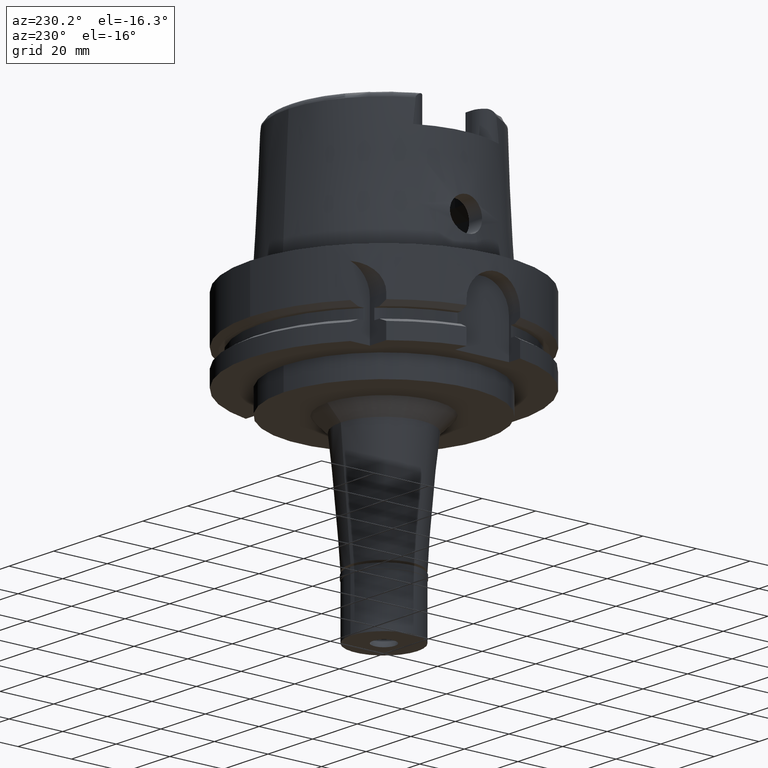
[diagram: clean part render]
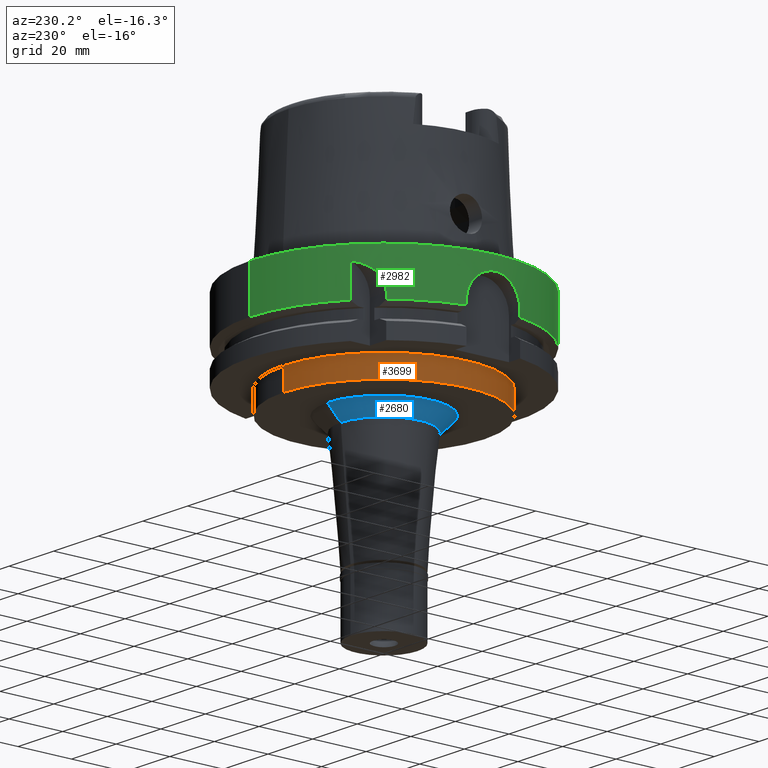
[diagram: same view with three faces highlighted in distinct colors, each labeled with its STEP entity id]
A machine part, auxiliary view with three faces highlighted in distinct colors.
Their STEP definitions:

[orange] entity #3699 — the highlighted cylindrical surface (partial cylindrical patch) has radius 37.5 mm, axis along (0, 0, 1).
#30 = ORIENTED_EDGE ( 'NONE', *, *, #2833, .F. ) ;
#270 = CARTESIAN_POINT ( 'NONE',  ( 0.0000000000000000000, 37.50000000000000000, -29.00000000000000000 ) ) ;
#278 = DIRECTION ( 'NONE',  ( 0.0000000000000000000, 0.0000000000000000000, 1.000000000000000000 ) ) ;
#393 = DIRECTION ( 'NONE',  ( 0.0000000000000000000, 0.0000000000000000000, -1.000000000000000000 ) ) ;
#563 = VERTEX_POINT ( 'NONE', #4915 ) ;
#754 = DIRECTION ( 'NONE',  ( 0.0000000000000000000, 0.0000000000000000000, 1.000000000000000000 ) ) ;
#762 = VECTOR ( 'NONE', #3190, 1000.000000000000000 ) ;
#862 = AXIS2_PLACEMENT_3D ( 'NONE', #1278, #278, #3401 ) ;
#1223 = EDGE_LOOP ( 'NONE', ( #4457, #30, #2202, #3383 ) ) ;
#1278 = CARTESIAN_POINT ( 'NONE',  ( 0.0000000000000000000, 0.0000000000000000000, -37.00000000000000000 ) ) ;
#1288 = CIRCLE ( 'NONE', #4975, 37.50000000000000000 ) ;
#1596 = CARTESIAN_POINT ( 'NONE',  ( 0.0000000000000000000, 37.50000000000000000, -37.00000000000000000 ) ) ;
#1748 = CARTESIAN_POINT ( 'NONE',  ( 0.0000000000000000000, -37.50000000000000000, -29.00000000000000000 ) ) ;
#2083 = DIRECTION ( 'NONE',  ( 0.0000000000000000000, 1.000000000000000000, 0.0000000000000000000 ) ) ;
#2171 = FACE_OUTER_BOUND ( 'NONE', #1223, .T. ) ;
#2197 = EDGE_CURVE ( 'NONE', #4743, #563, #1288, .T. ) ;
#2202 = ORIENTED_EDGE ( 'NONE', *, *, #2197, .T. ) ;
#2265 = DIRECTION ( 'NONE',  ( 0.0000000000000000000, 0.0000000000000000000, -1.000000000000000000 ) ) ;
#2282 = VECTOR ( 'NONE', #393, 1000.000000000000000 ) ;
#2283 = CIRCLE ( 'NONE', #862, 37.50000000000000000 ) ;
#2588 = CARTESIAN_POINT ( 'NONE',  ( 0.0000000000000000000, 0.0000000000000000000, -106.2399999999999949 ) ) ;
#2833 = EDGE_CURVE ( 'NONE', #4743, #4057, #3430, .T. ) ;
#3190 = DIRECTION ( 'NONE',  ( 0.0000000000000000000, 0.0000000000000000000, -1.000000000000000000 ) ) ;
#3383 = ORIENTED_EDGE ( 'NONE', *, *, #4031, .T. ) ;
#3401 = DIRECTION ( 'NONE',  ( 0.0000000000000000000, 1.000000000000000000, 0.0000000000000000000 ) ) ;
#3430 = LINE ( 'NONE', #1748, #2282 ) ;
#3659 = CARTESIAN_POINT ( 'NONE',  ( 0.0000000000000000000, -37.50000000000000000, -29.00000000000000000 ) ) ;
#3699 = ADVANCED_FACE ( 'NONE', ( #2171 ), #4216, .T. ) ;
#3971 = DIRECTION ( 'NONE',  ( 0.0000000000000000000, -1.000000000000000000, 0.0000000000000000000 ) ) ;
#4031 = EDGE_CURVE ( 'NONE', #563, #4277, #4515, .T. ) ;
#4057 = VERTEX_POINT ( 'NONE', #4949 ) ;
#4216 = CYLINDRICAL_SURFACE ( 'NONE', #5186, 37.50000000000000000 ) ;
#4277 = VERTEX_POINT ( 'NONE', #1596 ) ;
#4404 = CARTESIAN_POINT ( 'NONE',  ( 0.0000000000000000000, 0.0000000000000000000, -29.00000000000000000 ) ) ;
#4457 = ORIENTED_EDGE ( 'NONE', *, *, #5093, .T. ) ;
#4515 = LINE ( 'NONE', #270, #762 ) ;
#4743 = VERTEX_POINT ( 'NONE', #3659 ) ;
#4915 = CARTESIAN_POINT ( 'NONE',  ( 0.0000000000000000000, 37.50000000000000000, -29.00000000000000000 ) ) ;
#4949 = CARTESIAN_POINT ( 'NONE',  ( 0.0000000000000000000, -37.50000000000000000, -37.00000000000000000 ) ) ;
#4975 = AXIS2_PLACEMENT_3D ( 'NONE', #4404, #2265, #3971 ) ;
#5093 = EDGE_CURVE ( 'NONE', #4277, #4057, #2283, .T. ) ;
#5186 = AXIS2_PLACEMENT_3D ( 'NONE', #2588, #754, #2083 ) ;

[blue] entity #2680 — the highlighted conical surface has half-angle 45 deg.
#247 = DIRECTION ( 'NONE',  ( 0.0000000000000000000, 0.7071067811862974395, -0.7071067811867974839 ) ) ;
#623 = CARTESIAN_POINT ( 'NONE',  ( 0.0000000000000000000, 21.14827726903000027, -37.00000000000000000 ) ) ;
#844 = VECTOR ( 'NONE', #4921, 1000.000000000000114 ) ;
#945 = CIRCLE ( 'NONE', #4989, 16.14827726903000027 ) ;
#1067 = ORIENTED_EDGE ( 'NONE', *, *, #3150, .T. ) ;
#1376 = CONICAL_SURFACE ( 'NONE', #2716, 18.64827726902999672, 0.7853981633972997312 ) ;
#1567 = EDGE_CURVE ( 'NONE', #3156, #1666, #3571, .T. ) ;
#1666 = VERTEX_POINT ( 'NONE', #4006 ) ;
#1712 = CARTESIAN_POINT ( 'NONE',  ( 0.0000000000000000000, 0.0000000000000000000, -42.00000000000000000 ) ) ;
#2046 = CARTESIAN_POINT ( 'NONE',  ( 0.0000000000000000000, -16.14827726903000027, -42.00000000000000000 ) ) ;
#2269 = CARTESIAN_POINT ( 'NONE',  ( 0.0000000000000000000, 0.0000000000000000000, -37.00000000000000000 ) ) ;
#2278 = VECTOR ( 'NONE', #247, 1000.000000000000114 ) ;
#2489 = DIRECTION ( 'NONE',  ( 0.0000000000000000000, -1.000000000000000000, 0.0000000000000000000 ) ) ;
#2674 = EDGE_CURVE ( 'NONE', #3156, #5260, #3194, .T. ) ;
#2680 = ADVANCED_FACE ( 'NONE', ( #4953 ), #1376, .T. ) ;
#2716 = AXIS2_PLACEMENT_3D ( 'NONE', #3307, #3702, #3280 ) ;
#2869 = EDGE_LOOP ( 'NONE', ( #5520, #3997, #4962, #1067 ) ) ;
#3150 = EDGE_CURVE ( 'NONE', #1666, #5400, #3695, .T. ) ;
#3156 = VERTEX_POINT ( 'NONE', #5435 ) ;
#3194 = LINE ( 'NONE', #5043, #2278 ) ;
#3280 = DIRECTION ( 'NONE',  ( 0.0000000000000000000, 1.000000000000000000, 0.0000000000000000000 ) ) ;
#3307 = CARTESIAN_POINT ( 'NONE',  ( 0.0000000000000000000, 0.0000000000000000000, -39.50000000000000000 ) ) ;
#3518 = DIRECTION ( 'NONE',  ( 0.0000000000000000000, 0.0000000000000000000, -1.000000000000000000 ) ) ;
#3571 = CIRCLE ( 'NONE', #4292, 21.14827726903000027 ) ;
#3695 = LINE ( 'NONE', #623, #844 ) ;
#3702 = DIRECTION ( 'NONE',  ( 0.0000000000000000000, 0.0000000000000000000, 1.000000000000000000 ) ) ;
#3997 = ORIENTED_EDGE ( 'NONE', *, *, #2674, .F. ) ;
#4006 = CARTESIAN_POINT ( 'NONE',  ( 0.0000000000000000000, 21.14827726903000027, -37.00000000000000000 ) ) ;
#4292 = AXIS2_PLACEMENT_3D ( 'NONE', #2269, #3518, #4386 ) ;
#4386 = DIRECTION ( 'NONE',  ( 0.0000000000000000000, -1.000000000000000000, 0.0000000000000000000 ) ) ;
#4756 = CARTESIAN_POINT ( 'NONE',  ( 0.0000000000000000000, 16.14827726903000027, -42.00000000000000000 ) ) ;
#4921 = DIRECTION ( 'NONE',  ( 0.0000000000000000000, -0.7071067811862974395, -0.7071067811867974839 ) ) ;
#4953 = FACE_OUTER_BOUND ( 'NONE', #2869, .T. ) ;
#4962 = ORIENTED_EDGE ( 'NONE', *, *, #1567, .T. ) ;
#4989 = AXIS2_PLACEMENT_3D ( 'NONE', #1712, #5146, #2489 ) ;
#5043 = CARTESIAN_POINT ( 'NONE',  ( 0.0000000000000000000, -21.14827726903000027, -37.00000000000000000 ) ) ;
#5146 = DIRECTION ( 'NONE',  ( 0.0000000000000000000, 0.0000000000000000000, -1.000000000000000000 ) ) ;
#5260 = VERTEX_POINT ( 'NONE', #2046 ) ;
#5400 = VERTEX_POINT ( 'NONE', #4756 ) ;
#5407 = EDGE_CURVE ( 'NONE', #5260, #5400, #945, .T. ) ;
#5435 = CARTESIAN_POINT ( 'NONE',  ( 0.0000000000000000000, -21.14827726903000027, -37.00000000000000000 ) ) ;
#5520 = ORIENTED_EDGE ( 'NONE', *, *, #5407, .F. ) ;

[green] entity #2982 — the highlighted cylindrical surface (partial cylindrical patch) has radius 50 mm, axis along (0, 0, 1).
#18 = CARTESIAN_POINT ( 'NONE',  ( -49.11376096720496065, -9.373077997959802232, -11.49978432326879307 ) ) ;
#78 = ORIENTED_EDGE ( 'NONE', *, *, #906, .F. ) ;
#83 = DIRECTION ( 'NONE',  ( 0.0000000000000000000, 1.000000000000000000, 0.0000000000000000000 ) ) ;
#150 = CARTESIAN_POINT ( 'NONE',  ( -38.56428243161905556, 31.82452987788887100, -12.10463462632676013 ) ) ;
#185 = CARTESIAN_POINT ( 'NONE',  ( -31.50000000000000000, 38.82975663071000128, -5.000000000003000267 ) ) ;
#196 = CARTESIAN_POINT ( 'NONE',  ( -38.51599276995643351, 31.88290173980269060, -11.89496725464521631 ) ) ;
#232 = CARTESIAN_POINT ( 'NONE',  ( -36.69566105582681814, 33.96628597999922761, -8.038090292617715349 ) ) ;
#243 = CARTESIAN_POINT ( 'NONE',  ( -49.93766221889708845, 2.576833951301615855, -5.315698782541145917 ) ) ;
#258 = CARTESIAN_POINT ( 'NONE',  ( -38.60139172826617227, 31.77950293186433584, -12.28584632256214704 ) ) ;
#265 = EDGE_CURVE ( 'NONE', #2411, #1310, #4636, .T. ) ;
#268 = CARTESIAN_POINT ( 'NONE',  ( -49.36413902295041822, 7.957356413242497872, -8.907672157399399993 ) ) ;
#281 = DIRECTION ( 'NONE',  ( -0.7765951326141738997, 0.6299999999999789102, 0.0000000000000000000 ) ) ;
#292 = CARTESIAN_POINT ( 'NONE',  ( -49.05322580645561459, 9.684917966149791724, -12.42504068156063468 ) ) ;
#327 = CARTESIAN_POINT ( 'NONE',  ( -49.75276534624423164, -4.996883345947557231, -6.312905600454568500 ) ) ;
#416 = CARTESIAN_POINT ( 'NONE',  ( -49.00272811111697990, -9.937255846380001145, -13.70646131497156617 ) ) ;
#482 = CIRCLE ( 'NONE', #3166, 49.99999999999997868 ) ;
#511 = EDGE_CURVE ( 'NONE', #3853, #3652, #570, .T. ) ;
#522 = CARTESIAN_POINT ( 'NONE',  ( -48.98979485565999425, 10.00000000000000000, -15.00000000000000000 ) ) ;
#570 = LINE ( 'NONE', #522, #4647 ) ;
#596 = CARTESIAN_POINT ( 'NONE',  ( -35.65907358007449091, 35.04931653068578612, -6.994436786974699949 ) ) ;
#643 = CARTESIAN_POINT ( 'NONE',  ( -37.35962199737617340, 33.23039561188888058, -9.014139173505677505 ) ) ;
#681 = CARTESIAN_POINT ( 'NONE',  ( -34.12331818634723390, 36.57299707597481131, -5.848488339914277745 ) ) ;
#690 = CARTESIAN_POINT ( 'NONE',  ( -49.56420834563829914, 6.603984266183363872, -7.461920244031404081 ) ) ;
#714 = DIRECTION ( 'NONE',  ( 0.0000000000000000000, 0.0000000000000000000, 1.000000000000000000 ) ) ;
#715 = CARTESIAN_POINT ( 'NONE',  ( -49.00578939422626945, 9.921372684344154536, -13.70666068587119391 ) ) ;
#753 = AXIS2_PLACEMENT_3D ( 'NONE', #2692, #4410, #83 ) ;
#842 = VECTOR ( 'NONE', #2343, 1000.000000000000114 ) ;
#874 = CARTESIAN_POINT ( 'NONE',  ( 0.0000000000000000000, -50.00000000000000000, -1.847411112975999717E-13 ) ) ;
#906 = EDGE_CURVE ( 'NONE', #3082, #4096, #1629, .T. ) ;
#1000 = CARTESIAN_POINT ( 'NONE',  ( -48.98979485565999425, -10.00000000000000000, -16.75240473580999989 ) ) ;
#1016 = CARTESIAN_POINT ( 'NONE',  ( -38.70796201607329579, 31.64969338347680505, -12.89513201674562914 ) ) ;
#1044 = CARTESIAN_POINT ( 'NONE',  ( -38.82975663071001549, 31.50000000000000000, -14.13563907234338402 ) ) ;
#1046 = ORIENTED_EDGE ( 'NONE', *, *, #1865, .T. ) ;
#1052 = CARTESIAN_POINT ( 'NONE',  ( 0.0000000000000000000, 0.0000000000000000000, -16.75240473580999989 ) ) ;
#1055 = CARTESIAN_POINT ( 'NONE',  ( -38.82975663071000128, 31.50000000000000000, -14.63689785921000031 ) ) ;
#1061 = VERTEX_POINT ( 'NONE', #185 ) ;
#1069 = CARTESIAN_POINT ( 'NONE',  ( -38.79930797705083734, 31.53775856775367004, -13.63544870742120452 ) ) ;
#1079 = EDGE_CURVE ( 'NONE', #2411, #2431, #1128, .T. ) ;
#1094 = CARTESIAN_POINT ( 'NONE',  ( -38.47947817357611910, 31.92694257492321341, -11.74595733450168744 ) ) ;
#1103 = CARTESIAN_POINT ( 'NONE',  ( -49.24057546737061131, 8.689273284154912957, -10.00696051082658578 ) ) ;
#1128 = CIRCLE ( 'NONE', #5294, 50.00000000000000000 ) ;
#1159 = CARTESIAN_POINT ( 'NONE',  ( -49.80599996320624712, 4.409853147468654200, -6.018768826933621696 ) ) ;
#1188 = CARTESIAN_POINT ( 'NONE',  ( -49.87775720024416870, -3.507471625422800443, -5.629572553200928198 ) ) ;
#1221 = CARTESIAN_POINT ( 'NONE',  ( -49.99998093301590529, -0.6534670004194579329, -5.000092578857270986 ) ) ;
#1248 = CARTESIAN_POINT ( 'NONE',  ( -48.98979485566345460, -10.00000000000062528, -14.35040085522487097 ) ) ;
#1310 = VERTEX_POINT ( 'NONE', #1696 ) ;
#1347 = DIRECTION ( 'NONE',  ( 3.933032361779000221E-13, -2.534170336197999844E-14, 1.000000000000000000 ) ) ;
#1440 = B_SPLINE_CURVE_WITH_KNOTS ( 'NONE', 3,
 ( #4912, #1044, #1069, #1016, #5427, #258, #150, #196, #2319, #1094, #1495, #2781, #1547, #2810, #3582, #4504, #2758, #4107, #643, #4995, #4455, #4878, #4076, #232, #1979, #3662, #596, #5402, #5321, #4021, #1520, #3231, #4963, #4537, #681, #2398, #2450 ),
 .UNSPECIFIED., .F., .F.,
 ( 4, 2, 2, 1, 1, 2, 2, 2, 2, 1, 1, 1, 2, 2, 2, 2, 1, 1, 1, 1, 2, 2, 4 ),
 ( 0.0000000000000000000, 0.1250000000000055789, 0.1875000000000083822, 0.2187500000000097700, 0.2343750000000104916, 0.2421875000000109912, 0.2500000000000115463, 0.3750000000000219824, 0.4375000000000274780, 0.4687500000000296985, 0.4843750000000308087, 0.4921875000000306977, 0.4960937500000309752, 0.5000000000000313083, 0.6250000000000336398, 0.6875000000000351941, 0.7187500000000356382, 0.7343750000000354161, 0.7421875000000349720, 0.7460937500000351941, 0.7480468750000353051, 0.7500000000000354161, 1.000000000000000000 ),
 .UNSPECIFIED. ) ;
#1444 = LINE ( 'NONE', #2731, #842 ) ;
#1474 = CARTESIAN_POINT ( 'NONE',  ( -49.83155971895288872, 4.111934493504848298, -5.878629102294919306 ) ) ;
#1480 = VERTEX_POINT ( 'NONE', #2194 ) ;
#1495 = CARTESIAN_POINT ( 'NONE',  ( -38.47234325132769328, 31.93553949877599862, -11.71762511075636048 ) ) ;
#1512 = CARTESIAN_POINT ( 'NONE',  ( -38.82975730067999365, 31.49999917413000361, -16.75240773889999701 ) ) ;
#1520 = CARTESIAN_POINT ( 'NONE',  ( -35.17537952936849166, 35.53442230105653721, -6.611165374052017540 ) ) ;
#1529 = CARTESIAN_POINT ( 'NONE',  ( -38.82975730067999365, 31.49999917413000361, -16.75240773889999701 ) ) ;
#1547 = CARTESIAN_POINT ( 'NONE',  ( -38.17632630273602246, 32.29025914496128280, -10.70682090802703001 ) ) ;
#1554 = DIRECTION ( 'NONE',  ( 0.0000000000000000000, 1.000000000000000000, 0.0000000000000000000 ) ) ;
#1593 = CARTESIAN_POINT ( 'NONE',  ( -48.99301193280669509, 9.984278233541541425, -14.35123416562304222 ) ) ;
#1621 = CARTESIAN_POINT ( 'NONE',  ( -49.05607978777004519, -9.670066251730652596, -12.43135662633653382 ) ) ;
#1628 = ORIENTED_EDGE ( 'NONE', *, *, #265, .F. ) ;
#1629 = LINE ( 'NONE', #1512, #2134 ) ;
#1650 = CARTESIAN_POINT ( 'NONE',  ( -49.09271140707787850, -9.482343178681549745, -11.80743996049894129 ) ) ;
#1686 = CARTESIAN_POINT ( 'NONE',  ( -50.00001902432047984, 0.6505459170435394789, -4.999907634461547623 ) ) ;
#1696 = CARTESIAN_POINT ( 'NONE',  ( 0.0000000000000000000, -50.00000000000000000, -16.75240473580999989 ) ) ;
#1755 = EDGE_CURVE ( 'NONE', #4665, #2693, #3251, .T. ) ;
#1764 = EDGE_CURVE ( 'NONE', #2937, #1310, #482, .T. ) ;
#1789 = CARTESIAN_POINT ( 'NONE',  ( 0.0000000000000000000, 50.00000000000000000, -16.75240473580999989 ) ) ;
#1865 = EDGE_CURVE ( 'NONE', #2431, #4665, #3815, .T. ) ;
#1964 = CARTESIAN_POINT ( 'NONE',  ( 0.0000000000000000000, 0.0000000000000000000, -16.75240473580999989 ) ) ;
#1965 = CARTESIAN_POINT ( 'NONE',  ( -49.01530533542555190, 9.874410989145081530, -13.38689900033642743 ) ) ;
#1979 = CARTESIAN_POINT ( 'NONE',  ( -36.15164981678162803, 34.54172804584336376, -7.449566750167147866 ) ) ;
#1988 = CARTESIAN_POINT ( 'NONE',  ( -49.43052037931298059, 7.539695759655129947, -8.397875587999802605 ) ) ;
#2038 = ORIENTED_EDGE ( 'NONE', *, *, #1079, .T. ) ;
#2096 = AXIS2_PLACEMENT_3D ( 'NONE', #1964, #714, #1554 ) ;
#2100 = CARTESIAN_POINT ( 'NONE',  ( -49.98727917437998514, -1.297877227065499017, -5.063039826289916334 ) ) ;
#2132 = DIRECTION ( 'NONE',  ( 0.0000000000000000000, -2.969006079282000197E-14, -1.000000000000000000 ) ) ;
#2134 = VECTOR ( 'NONE', #3679, 1000.000000000000227 ) ;
#2194 = CARTESIAN_POINT ( 'NONE',  ( -48.98979485565999425, -10.00000000000000000, -15.00000000000000000 ) ) ;
#2245 = DIRECTION ( 'NONE',  ( -4.014125812537999910E-13, -2.635537149646000036E-14, -1.000000000000000000 ) ) ;
#2261 = EDGE_CURVE ( 'NONE', #1061, #2693, #1444, .T. ) ;
#2266 = ORIENTED_EDGE ( 'NONE', *, *, #2951, .F. ) ;
#2319 = CARTESIAN_POINT ( 'NONE',  ( -38.49422674019226065, 31.90916111476889938, -11.80550684792985550 ) ) ;
#2328 = CARTESIAN_POINT ( 'NONE',  ( -49.98728101595654749, 1.296887710263365801, -5.063028862073664982 ) ) ;
#2341 = ORIENTED_EDGE ( 'NONE', *, *, #1755, .T. ) ;
#2342 = EDGE_CURVE ( 'NONE', #4096, #1061, #1440, .T. ) ;
#2343 = DIRECTION ( 'NONE',  ( -3.028823767049074487E-07, -2.457085509676059455E-07, -0.9999999999999239497 ) ) ;
#2349 = DIRECTION ( 'NONE',  ( 0.0000000000000000000, 0.0000000000000000000, 1.000000000000000000 ) ) ;
#2398 = CARTESIAN_POINT ( 'NONE',  ( -32.91423025105905964, 37.68248565159829155, -5.317891999017795968 ) ) ;
#2405 = CARTESIAN_POINT ( 'NONE',  ( -49.72223154727910810, 5.270286308982509382, -6.495243174837798783 ) ) ;
#2409 = CARTESIAN_POINT ( 'NONE',  ( 0.0000000000000000000, 0.0000000000000000000, -1.847411112975999717E-13 ) ) ;
#2411 = VERTEX_POINT ( 'NONE', #874 ) ;
#2431 = VERTEX_POINT ( 'NONE', #3891 ) ;
#2443 = ORIENTED_EDGE ( 'NONE', *, *, #2342, .F. ) ;
#2450 = CARTESIAN_POINT ( 'NONE',  ( -31.50000000000000000, 38.82975663071000128, -5.000000000003000267 ) ) ;
#2477 = CIRCLE ( 'NONE', #4278, 50.00000000000000711 ) ;
#2581 = CARTESIAN_POINT ( 'NONE',  ( 0.0000000000000000000, -50.00000000000000000, -1.184237892933999964E-13 ) ) ;
#2692 = CARTESIAN_POINT ( 'NONE',  ( 0.0000000000000000000, 0.0000000000000000000, -106.2399999999999949 ) ) ;
#2693 = VERTEX_POINT ( 'NONE', #2827 ) ;
#2731 = CARTESIAN_POINT ( 'NONE',  ( -31.50000000000000000, 38.82975663071000128, -5.000000000003000267 ) ) ;
#2758 = CARTESIAN_POINT ( 'NONE',  ( -37.52314901584829698, 33.04585643121752270, -9.293123408382598427 ) ) ;
#2779 = DIRECTION ( 'NONE',  ( 0.0000000000000000000, 0.0000000000000000000, 1.000000000000000000 ) ) ;
#2781 = CARTESIAN_POINT ( 'NONE',  ( -38.33684535435479290, 32.09868603654006591, -11.18926694058480820 ) ) ;
#2789 = CARTESIAN_POINT ( 'NONE',  ( -49.90100947730315539, 3.202912792423205701, -5.504239524062926492 ) ) ;
#2794 = DIRECTION ( 'NONE',  ( 0.0000000000000000000, -1.000000000000000000, 0.0000000000000000000 ) ) ;
#2806 = CARTESIAN_POINT ( 'NONE',  ( 0.0000000000000000000, 0.0000000000000000000, -16.75240473580999989 ) ) ;
#2810 = CARTESIAN_POINT ( 'NONE',  ( -37.88606029654737029, 32.62931976362159503, -10.01334511173076613 ) ) ;
#2827 = CARTESIAN_POINT ( 'NONE',  ( -31.50000355958999876, 38.82975374304999860, -16.75239179145000179 ) ) ;
#2888 = ORIENTED_EDGE ( 'NONE', *, *, #1764, .T. ) ;
#2937 = VERTEX_POINT ( 'NONE', #4387 ) ;
#2941 = CARTESIAN_POINT ( 'NONE',  ( -49.04044161550470449, -9.748804551245823902, -12.74904141137438174 ) ) ;
#2951 = EDGE_CURVE ( 'NONE', #2937, #1480, #3541, .T. ) ;
#2982 = ADVANCED_FACE ( 'NONE', ( #5328 ), #3062, .T. ) ;
#3062 = CYLINDRICAL_SURFACE ( 'NONE', #753, 50.00000000000000000 ) ;
#3082 = VERTEX_POINT ( 'NONE', #1529 ) ;
#3166 = AXIS2_PLACEMENT_3D ( 'NONE', #1052, #2349, #4051 ) ;
#3226 = EDGE_CURVE ( 'NONE', #3853, #1480, #4797, .T. ) ;
#3231 = CARTESIAN_POINT ( 'NONE',  ( -35.15478724051074266, 35.55478508295975359, -6.596096227843196935 ) ) ;
#3251 = CIRCLE ( 'NONE', #2096, 50.00000000000000000 ) ;
#3302 = CARTESIAN_POINT ( 'NONE',  ( -49.75138070725475359, 4.988442125447416053, -6.326834153193368060 ) ) ;
#3303 = ORIENTED_EDGE ( 'NONE', *, *, #2261, .F. ) ;
#3332 = CARTESIAN_POINT ( 'NONE',  ( -49.43014704699988471, -7.542171443543930209, -8.400588336016667768 ) ) ;
#3333 = ORIENTED_EDGE ( 'NONE', *, *, #4710, .T. ) ;
#3374 = CARTESIAN_POINT ( 'NONE',  ( -48.98979485565999425, 10.00000000000000000, -16.75240473580999989 ) ) ;
#3394 = CARTESIAN_POINT ( 'NONE',  ( 0.0000000000000000000, 50.00000000000000000, -1.184237892933999964E-13 ) ) ;
#3395 = CARTESIAN_POINT ( 'NONE',  ( -49.80800702058242990, -4.419787184495207022, -6.005617640351331943 ) ) ;
#3422 = CARTESIAN_POINT ( 'NONE',  ( -48.98979485565999425, -10.00000000000000000, -15.00000000000000000 ) ) ;
#3450 = CARTESIAN_POINT ( 'NONE',  ( -49.94990229587389052, -2.260619775888224492, -5.253370011513534443 ) ) ;
#3541 = LINE ( 'NONE', #1000, #4063 ) ;
#3543 = CARTESIAN_POINT ( 'NONE',  ( -48.98979485565999425, 10.00000000000000000, -15.00000000000000000 ) ) ;
#3582 = CARTESIAN_POINT ( 'NONE',  ( -37.78105705635771017, 32.75094513408360086, -9.787207227963312661 ) ) ;
#3594 = ORIENTED_EDGE ( 'NONE', *, *, #511, .F. ) ;
#3644 = CARTESIAN_POINT ( 'NONE',  ( -48.98979485566341907, 10.00000000000068390, -14.67491835704066716 ) ) ;
#3652 = VERTEX_POINT ( 'NONE', #3374 ) ;
#3662 = CARTESIAN_POINT ( 'NONE',  ( -35.96050435272421453, 34.74087339845693378, -7.262054034966941352 ) ) ;
#3679 = DIRECTION ( 'NONE',  ( 3.166955095344913800E-07, 3.903884141554897929E-07, 0.9999999999998735456 ) ) ;
#3763 = ORIENTED_EDGE ( 'NONE', *, *, #3226, .T. ) ;
#3815 = LINE ( 'NONE', #3394, #5436 ) ;
#3817 = CARTESIAN_POINT ( 'NONE',  ( -49.36385105112923810, -7.959135214228051147, -8.910023755095679121 ) ) ;
#3852 = CARTESIAN_POINT ( 'NONE',  ( -49.18418642771308669, -8.998901902026652522, -10.58972549864429524 ) ) ;
#3853 = VERTEX_POINT ( 'NONE', #3543 ) ;
#3891 = CARTESIAN_POINT ( 'NONE',  ( 0.0000000000000000000, 50.00000000000000000, -1.184237892933999964E-13 ) ) ;
#4021 = CARTESIAN_POINT ( 'NONE',  ( -35.22322705486222105, 35.48702548803835555, -6.646520134583400186 ) ) ;
#4051 = DIRECTION ( 'NONE',  ( -0.9797958971132723072, -0.1999999999999946265, 0.0000000000000000000 ) ) ;
#4063 = VECTOR ( 'NONE', #1347, 1000.000000000000000 ) ;
#4076 = CARTESIAN_POINT ( 'NONE',  ( -37.01910167768743065, 33.61201606050956059, -8.465169415322973734 ) ) ;
#4086 = CARTESIAN_POINT ( 'NONE',  ( -49.09037218462304963, 9.497375886715952120, -11.80165732377740184 ) ) ;
#4096 = VERTEX_POINT ( 'NONE', #1055 ) ;
#4107 = CARTESIAN_POINT ( 'NONE',  ( -37.41503311812029864, 33.16804154830697371, -9.106476005491746406 ) ) ;
#4149 = DIRECTION ( 'NONE',  ( 0.0000000000000000000, 0.0000000000000000000, -1.000000000000000000 ) ) ;
#4175 = CARTESIAN_POINT ( 'NONE',  ( -49.93451955847145740, -2.577095582779183491, -5.332174567312923052 ) ) ;
#4278 = AXIS2_PLACEMENT_3D ( 'NONE', #2806, #2779, #281 ) ;
#4298 = CARTESIAN_POINT ( 'NONE',  ( -49.62992455194825681, -6.097302004933950137, -7.046391100959627174 ) ) ;
#4387 = CARTESIAN_POINT ( 'NONE',  ( -48.98979485565999425, -10.00000000000000000, -16.75240473580999989 ) ) ;
#4410 = DIRECTION ( 'NONE',  ( 0.0000000000000000000, 0.0000000000000000000, 1.000000000000000000 ) ) ;
#4424 = EDGE_LOOP ( 'NONE', ( #2443, #78, #3333, #3594, #3763, #2266, #2888, #1628, #2038, #1046, #2341, #3303 ) ) ;
#4455 = CARTESIAN_POINT ( 'NONE',  ( -37.31949491298836108, 33.27543996757026434, -8.948588334017905765 ) ) ;
#4504 = CARTESIAN_POINT ( 'NONE',  ( -37.61118033888312340, 32.94552897594810759, -9.456416166832266157 ) ) ;
#4537 = CARTESIAN_POINT ( 'NONE',  ( -35.13510713101698713, 35.57423166104712919, -6.581752804793940648 ) ) ;
#4634 = CARTESIAN_POINT ( 'NONE',  ( -49.89840431104617835, -3.201079878653081412, -5.520506000361377730 ) ) ;
#4636 = LINE ( 'NONE', #2581, #5466 ) ;
#4647 = VECTOR ( 'NONE', #2245, 1000.000000000000000 ) ;
#4665 = VERTEX_POINT ( 'NONE', #1789 ) ;
#4710 = EDGE_CURVE ( 'NONE', #3082, #3652, #2477, .T. ) ;
#4797 = B_SPLINE_CURVE_WITH_KNOTS ( 'NONE', 3,
 ( #5410, #3644, #1593, #715, #1965, #292, #4086, #5355, #1103, #268, #1988, #690, #5465, #2405, #3302, #1159, #1474, #2789, #243, #2328, #1686, #1221, #2100, #3450, #4175, #4634, #1188, #3395, #327, #4298, #5123, #3332, #3817, #5559, #3852, #18, #1650, #1621, #2941, #416, #1248, #3422 ),
 .UNSPECIFIED., .F., .F.,
 ( 4, 2, 2, 2, 2, 2, 2, 2, 2, 2, 2, 2, 2, 2, 2, 2, 2, 2, 2, 2, 4 ),
 ( 0.0000000000000000000, 0.03124999999999995143, 0.06249999999999990286, 0.1249999999999999722, 0.1875000000000000278, 0.2500000000000001110, 0.3125000000000000555, 0.3437500000000000000, 0.3749999999999999445, 0.4374999999999999445, 0.4999999999999998890, 0.5624999999999998890, 0.5937499999999998890, 0.6249999999999997780, 0.6874999999999997780, 0.7499999999999996669, 0.8124999999999997780, 0.8749999999999997780, 0.9062499999999997780, 0.9374999999999998890, 1.000000000000000000 ),
 .UNSPECIFIED. ) ;
#4878 = CARTESIAN_POINT ( 'NONE',  ( -37.31219023343139440, 33.28363095271322436, -8.936759007960080936 ) ) ;
#4912 = CARTESIAN_POINT ( 'NONE',  ( -38.82975663071000128, 31.50000000000000000, -14.63689785921000031 ) ) ;
#4963 = CARTESIAN_POINT ( 'NONE',  ( -35.14103989093815983, 35.56837129839627210, -6.586068570801270283 ) ) ;
#4995 = CARTESIAN_POINT ( 'NONE',  ( -37.33558440879718887, 33.25738667014464767, -8.974780015512060061 ) ) ;
#5066 = DIRECTION ( 'NONE',  ( 0.0000000000000000000, 2.969006079282000197E-14, -1.000000000000000000 ) ) ;
#5123 = CARTESIAN_POINT ( 'NONE',  ( -49.56400203270349891, -6.605565053347207005, -7.463225253139730953 ) ) ;
#5294 = AXIS2_PLACEMENT_3D ( 'NONE', #2409, #4149, #2794 ) ;
#5321 = CARTESIAN_POINT ( 'NONE',  ( -35.31811751181881931, 35.39270168671211536, -6.718001670676171599 ) ) ;
#5328 = FACE_OUTER_BOUND ( 'NONE', #4424, .T. ) ;
#5355 = CARTESIAN_POINT ( 'NONE',  ( -49.18452328894144898, 8.997080570827556301, -10.58577624100580117 ) ) ;
#5402 = CARTESIAN_POINT ( 'NONE',  ( -35.50468004960873714, 35.20596890893662589, -6.864039177041491691 ) ) ;
#5410 = CARTESIAN_POINT ( 'NONE',  ( -48.98979485565999425, 10.00000000000000000, -15.00000000000000000 ) ) ;
#5427 = CARTESIAN_POINT ( 'NONE',  ( -38.66990119899933376, 31.69620809563006247, -12.65001824175863554 ) ) ;
#5436 = VECTOR ( 'NONE', #2132, 1000.000000000000000 ) ;
#5465 = CARTESIAN_POINT ( 'NONE',  ( -49.63038046552301097, 6.093459290664489991, -7.043599315314807541 ) ) ;
#5466 = VECTOR ( 'NONE', #5066, 1000.000000000000000 ) ;
#5559 = CARTESIAN_POINT ( 'NONE',  ( -49.24031667928058198, -8.690732839099245766, -10.00953545788953747 ) ) ;